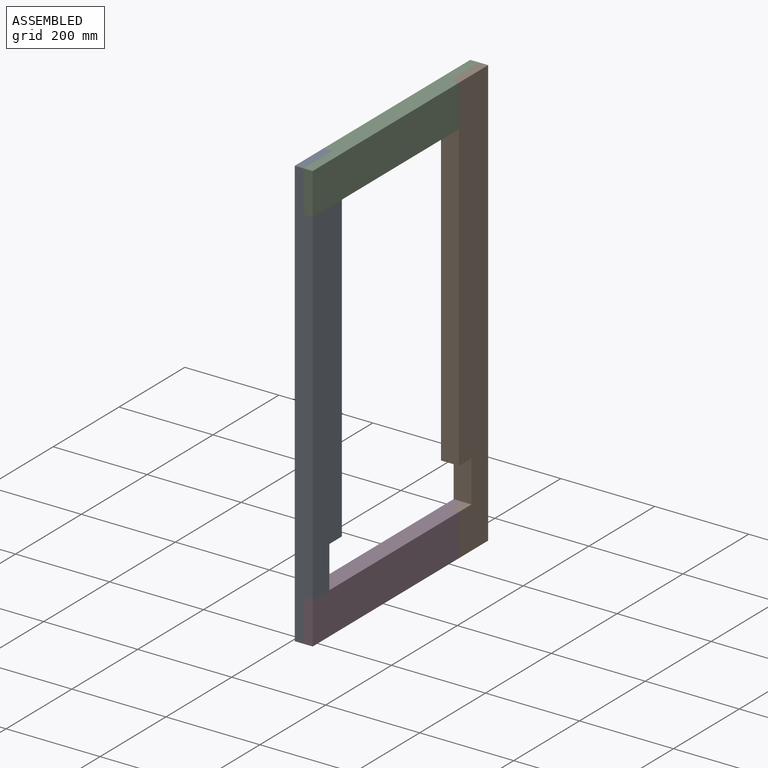
[diagram: assembled view]
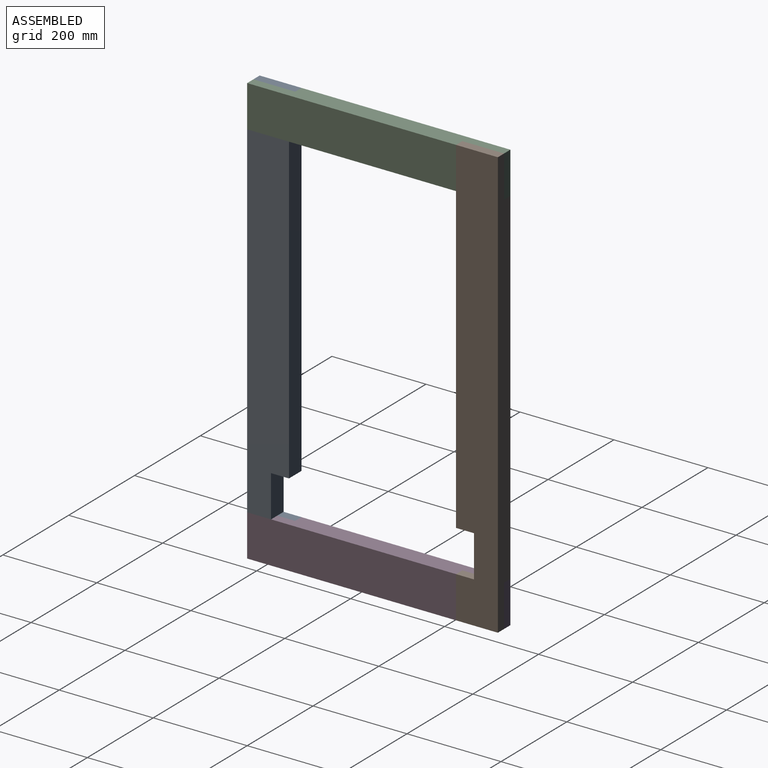
[diagram: assembled view, second angle]
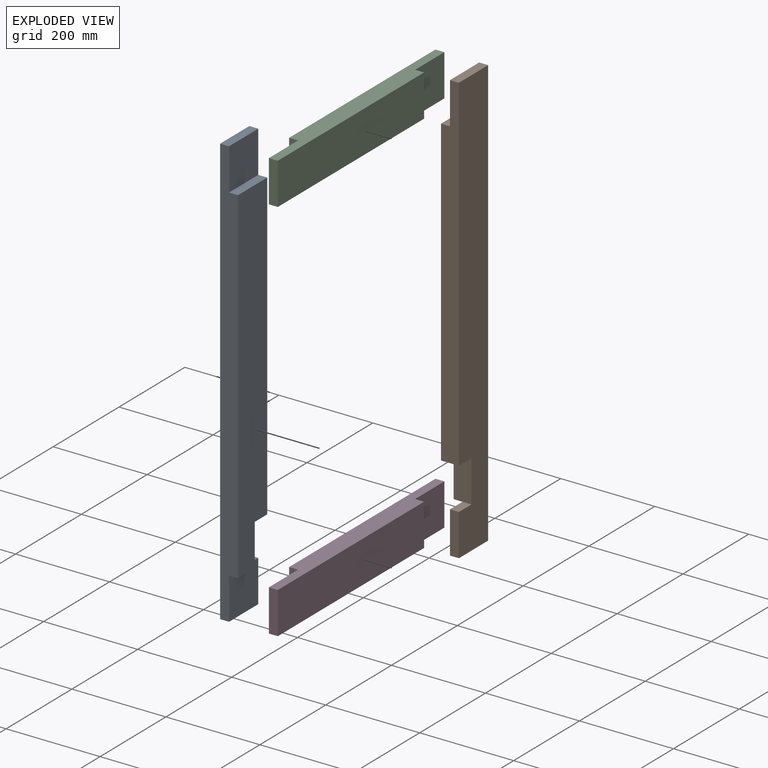
[diagram: exploded view]
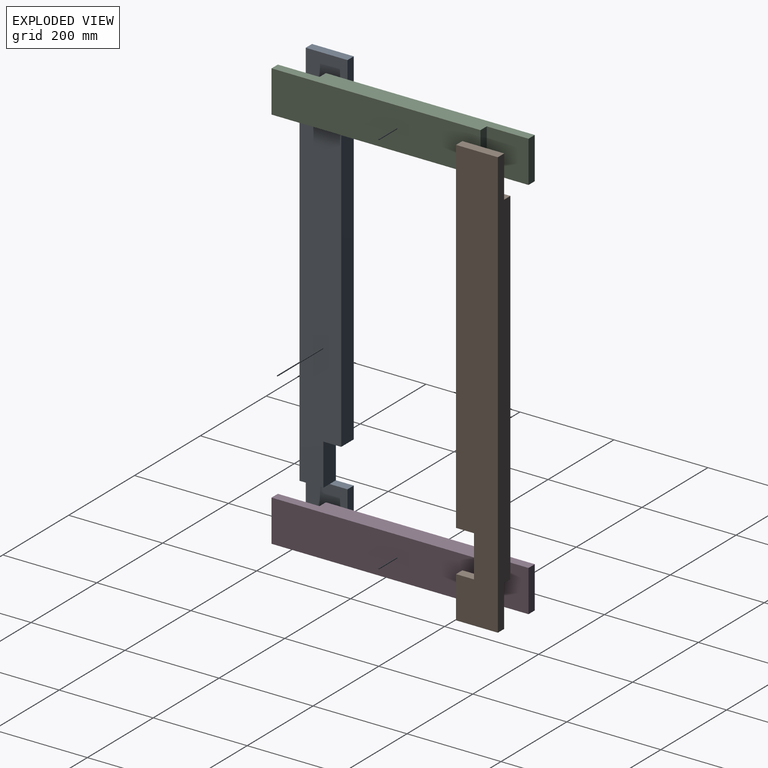
[diagram: exploded view, second angle]
ASSEMBLY  parts=4 mates=3
PART A: 14 faces, bbox 38.1x88.9x914.4 mm
  f0: plane 88.9x88.9mm, normal (1,0,0), area 7903.2mm2, adj f1,f2,f8,f12
  f1: plane 88.9x19.05mm, normal (0,0,1), area 1693.5mm2, adj f0,f2,f8,f9
  f2: plane 914.4x38.1mm, normal (0,-1,0), area 31451.5mm2, adj f0,f1,f3,f9,f10,f11,f12,f13
  f3: plane 88.9x19.05mm, normal (0,0,-1), area 1693.5mm2, adj f2,f4,f9,f10
  f4: plane 88.9x19.05mm, normal (0,1,0), area 1693.5mm2, adj f3,f5,f9,f10
  f5: plane 38.1x19.05mm, normal (0,0,1), area 725.8mm2, adj f4,f6,f9,f10
  f6: plane 88.9x38.1mm, normal (0,1,0), area 3387.1mm2, adj f5,f7,f9,f11,f13
  f7: plane 38.1x38.1mm, normal (0,0,-1), area 1451.6mm2, adj f6,f8,f9,f13
  f8: plane 736.6x38.1mm, normal (0,1,0), area 26370.9mm2, adj f0,f1,f7,f9,f12,f13
  f9: plane 914.4x88.9mm, normal (-1,0,0), area 77903.1mm2, adj f1,f2,f3,f4,f5,f6,f7,f8
  f10: plane 88.9x88.9mm, normal (1,0,0), area 7903.2mm2, adj f2,f3,f4,f5,f11
  f11: plane 50.8x19.05mm, normal (0,0,-1), area 967.7mm2, adj f2,f6,f10,f13
  f12: plane 88.9x19.05mm, normal (0,0,1), area 1693.5mm2, adj f0,f2,f8,f13
  f13: plane 736.6x88.9mm, normal (1,0,0), area 62096.6mm2, adj f2,f6,f7,f8,f11,f12
PART B: same geometry as A
PART C: 10 faces, bbox 38.1x533.4x88.9 mm
  f0: plane 533.4x38.1mm, normal (0,0,1), area 16935.5mm2, adj f1,f3,f4,f5,f6,f7,f8,f9
  f1: plane 88.9x19.05mm, normal (0,-1,0), area 1693.5mm2, adj f0,f2,f4,f5
  f2: plane 533.4x38.1mm, normal (0,0,-1), area 16935.5mm2, adj f1,f3,f4,f5,f6,f7,f8,f9
  f3: plane 88.9x19.05mm, normal (0,1,0), area 1693.5mm2, adj f0,f2,f4,f9
  f4: plane 444.5x88.9mm, normal (1,0,0), area 39516mm2, adj f0,f1,f2,f3
  f5: plane 88.9x88.9mm, normal (-1,0,0), area 7903.2mm2, adj f0,f1,f2,f6
  f6: plane 88.9x19.05mm, normal (0,-1,0), area 1693.5mm2, adj f0,f2,f5,f8
  f7: plane 88.9x19.05mm, normal (0,1,0), area 1693.5mm2, adj f0,f2,f8,f9
  f8: plane 444.5x88.9mm, normal (-1,0,0), area 39516mm2, adj f0,f2,f6,f7
  f9: plane 88.9x88.9mm, normal (1,0,0), area 7903.2mm2, adj f0,f2,f3,f7
PART D: same geometry as C
PLACE A at identity
PLACE B rot(axis=(0,0,1),180deg) t=(0,0,0)mm
PLACE C at identity fixed
PLACE D rot(axis=(0,0,1),0deg) t=(0,0,-825.5)mm
MATE fastened A.f10 <-> D.f5  axis (1,0,0) through (0,-222.25,-412.75)mm
MATE fastened B.f0 <-> C.f9  axis (-1,0,0) through (0,222.25,412.75)mm
MATE fastened B.f10 <-> D.f9  axis (-1,0,0) through (0,222.25,-412.75)mm
